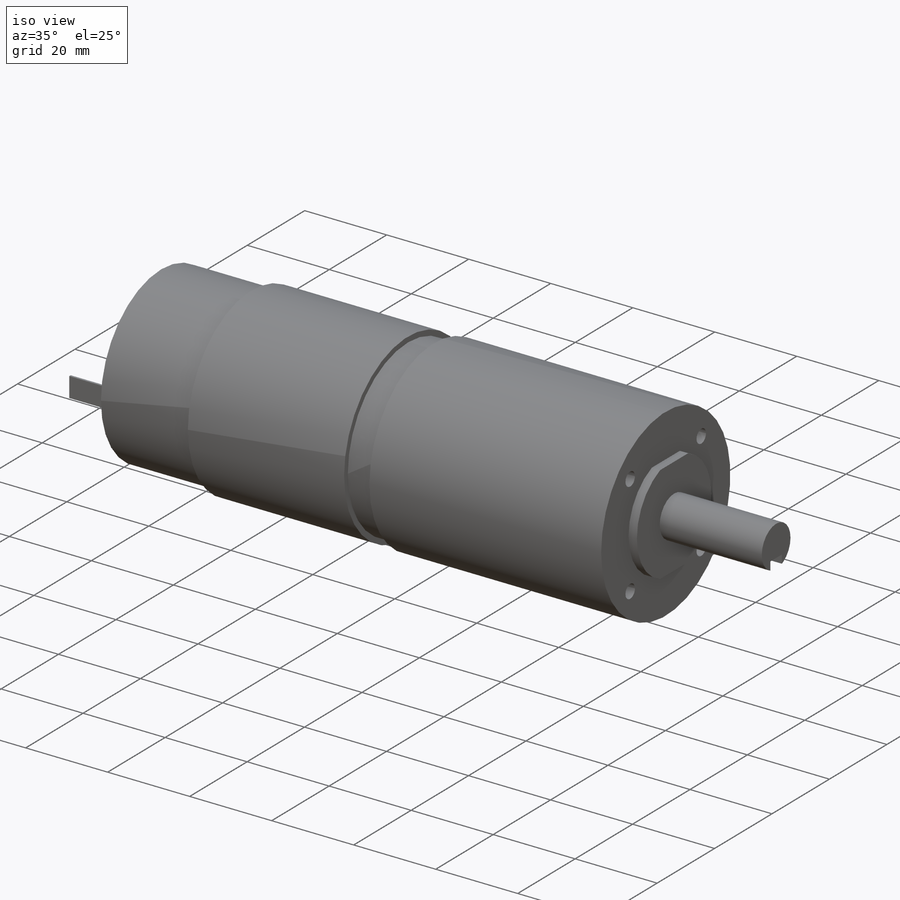
[diagram: iso view]
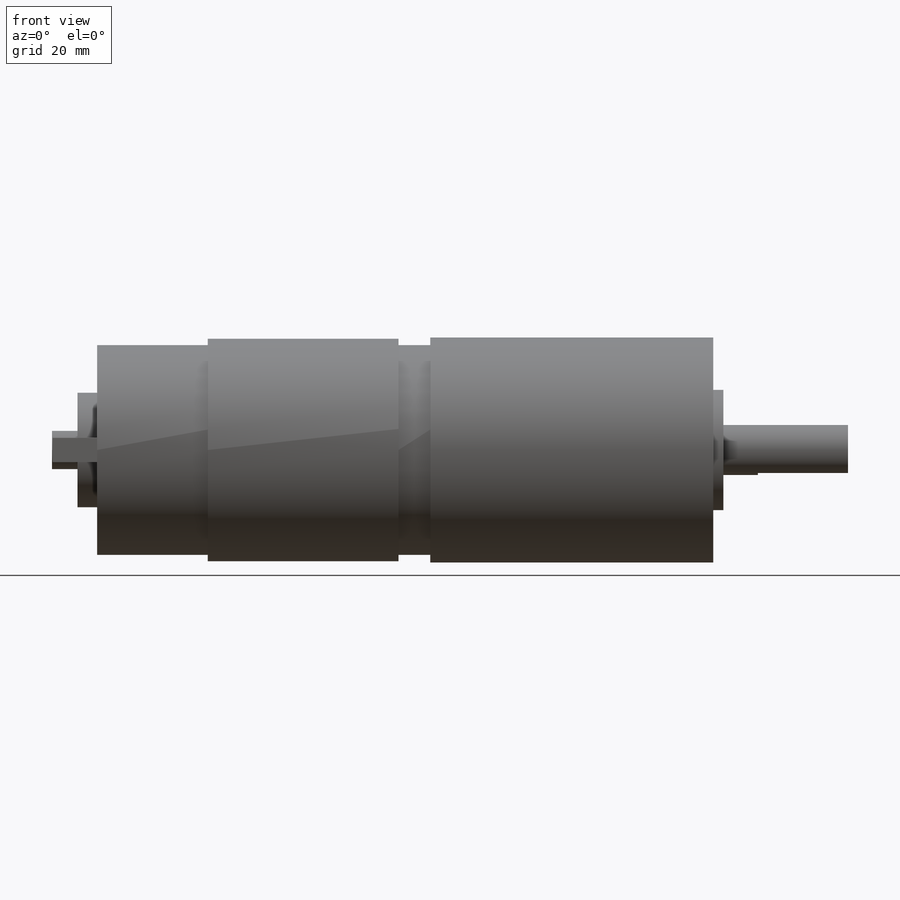
[diagram: front view]
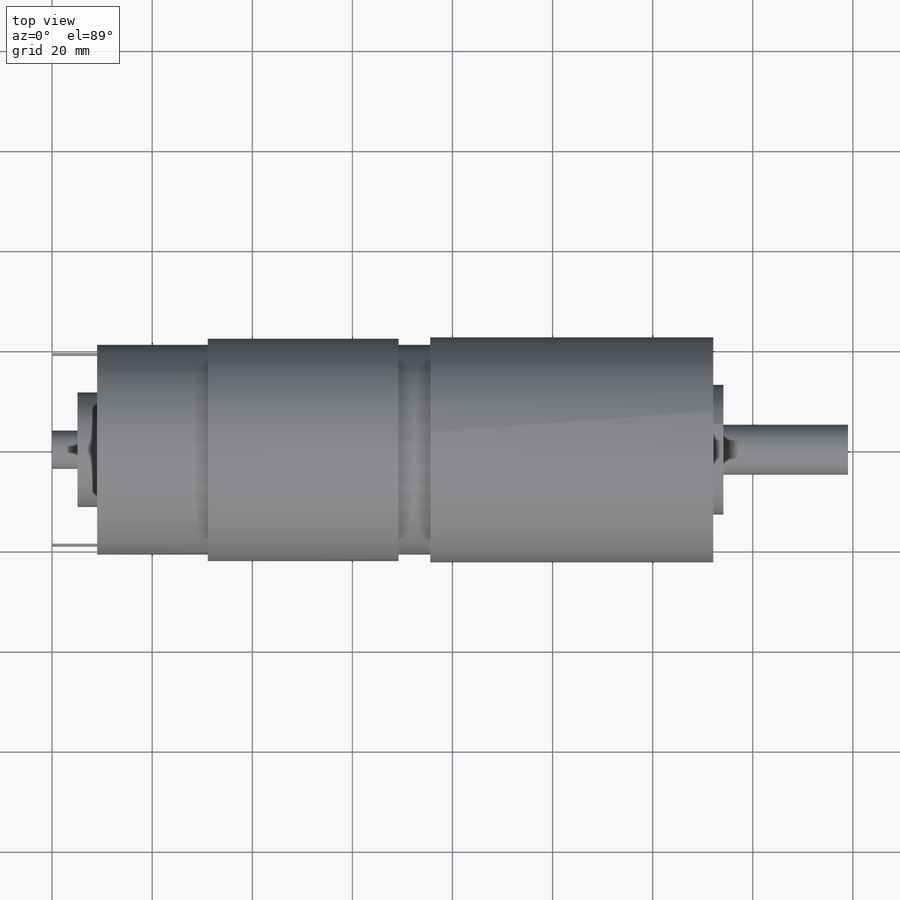
[diagram: top view]
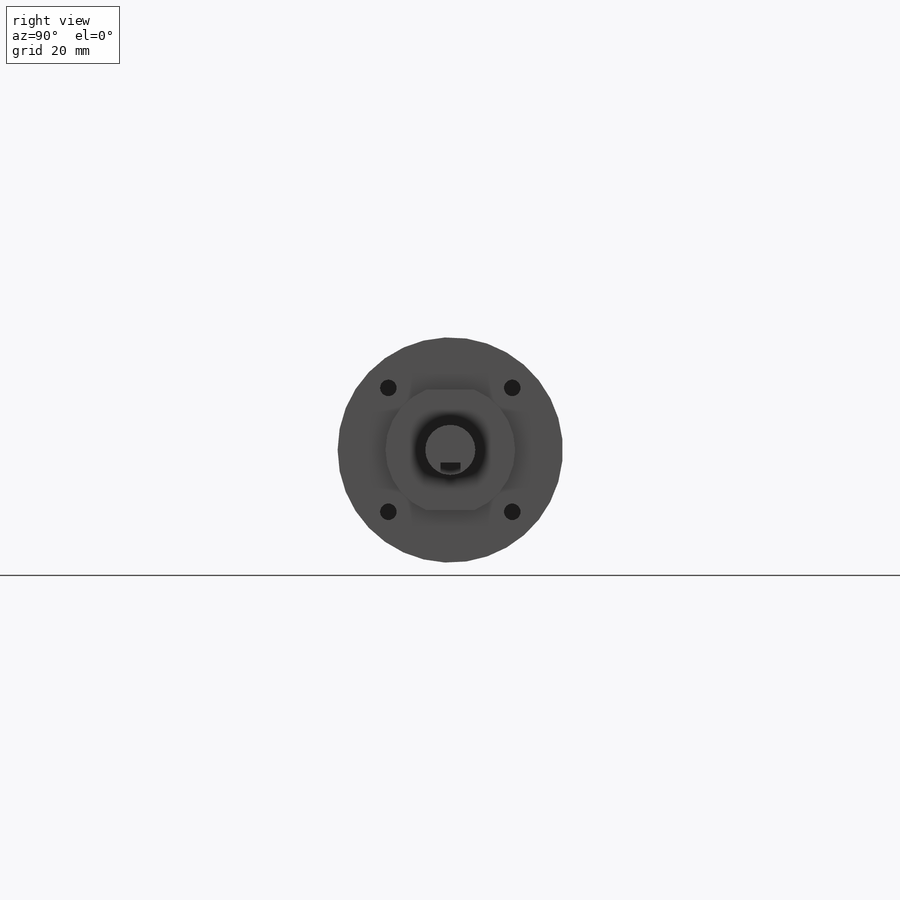
[diagram: right view]
SOLIDWORKS PART (.sldprt)
format: sldprt  version: not decoded by parser v0  size: 327,680 bytes
history: native  units: mm
features: sketch x9, cut_extrude x2, hole x2, mirror x2, material x1, revolve x1, plane x1, extrude x1 (+13 scaffold rows collapsed)
feature tree (32):
  scaffold x13  (default folders/planes/origin — collapsed)
  material  "Material <not specified>"
  sketch  "Sketch1"  dims[D1=159.004mm D2=66.548mm D3=56.515mm D4=2.032mm D5=26.924mm D6=~9.99998mm D7=25.908mm D8=44.5008mm D9=45.0088mm D10=5.08mm D11=7.62mm D12=22.86mm D13=41.91mm D14=38.1mm D15=6.35mm]
  revolve  "Revolve1"  Angle=360deg
  sketch  "Sketch2"  dims[D2=3.9878mm D3=2.032mm D1=0.0mm]
  cut_extrude  "Cut-Extrude1"  Depth=18.0086mm
  sketch  "Sketch3"  dims[D2=24.003mm D1=0.0mm]
  cut_extrude  "Cut-Extrude2"  [1 undecoded]
  hole  "Tap Drill for M4x0.7 Tap2"  Diameter=3.3mm Depth=12.7mm
  sketch  "Sketch6"  dims[c1.D1=35.0012mm c1.D2=35.0012mm c2.D2=45.0deg]
  sketch  "Sketch4"  dims[hole-wizard template sketch: 47 standard entries collapsed; hole parameters kept: c15.Hole Depth=12.7mm c15.D3=~14.816244mm c15.Drill Angle=180.0deg]
  plane  "Plane1"  Offset=19.05mm
  sketch  "Sketch8"  dims[D1=8.89mm D2=4.826mm]
  extrude  "Boss-Extrude1"  Depth=0.508mm
  mirror  "Mirror1"
  sketch  "Sketch9"
  sketch  "0_0_Point"  dims[Diameter=2.0mm Width=0.0 Depth=0.0 StubLength=2.0mm]
  sketch  "0_1_Point"
  hole  "0_1"  [1 undecoded]
  mirror  "Axis2"  Diameter=2mm Width=0 Depth=0 StubLength=2mm
decode coverage: 12 of 17 modeling features carry decoded parameters
note: ~ marks probable driven/reference dimensions
note: 2 parameter values undecoded
note: suppression state not decoded; provenance and decode notes live in map.json
